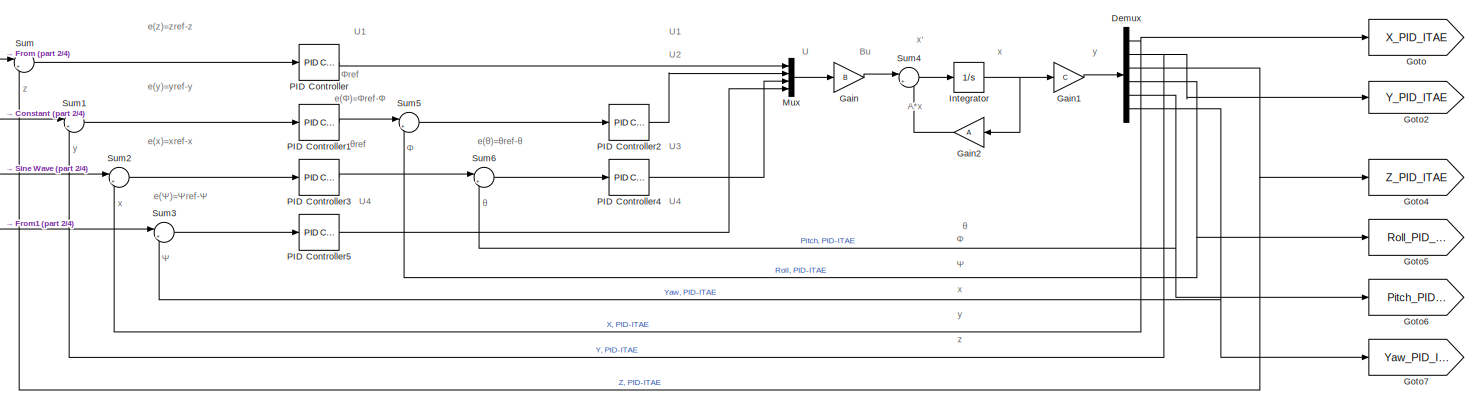
[diagram: root canvas - part 1/4, top center region]
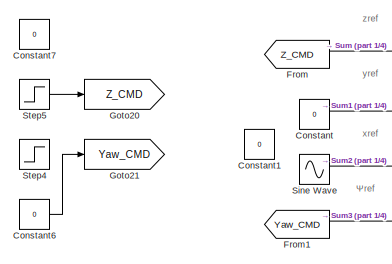
[diagram: root canvas - part 2/4, top left region]
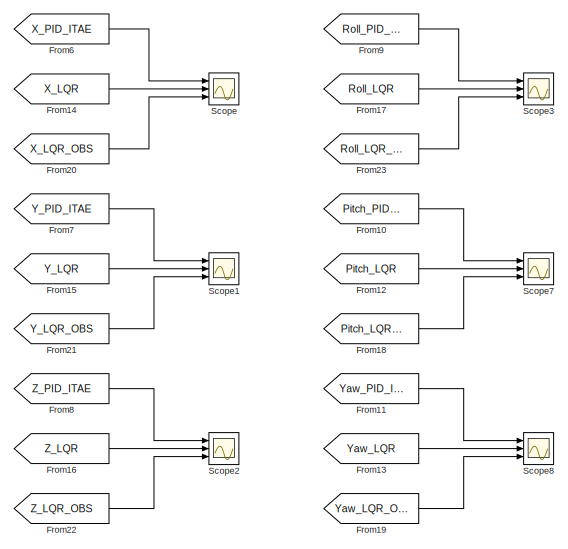
[diagram: root canvas - part 3/4, top right region]
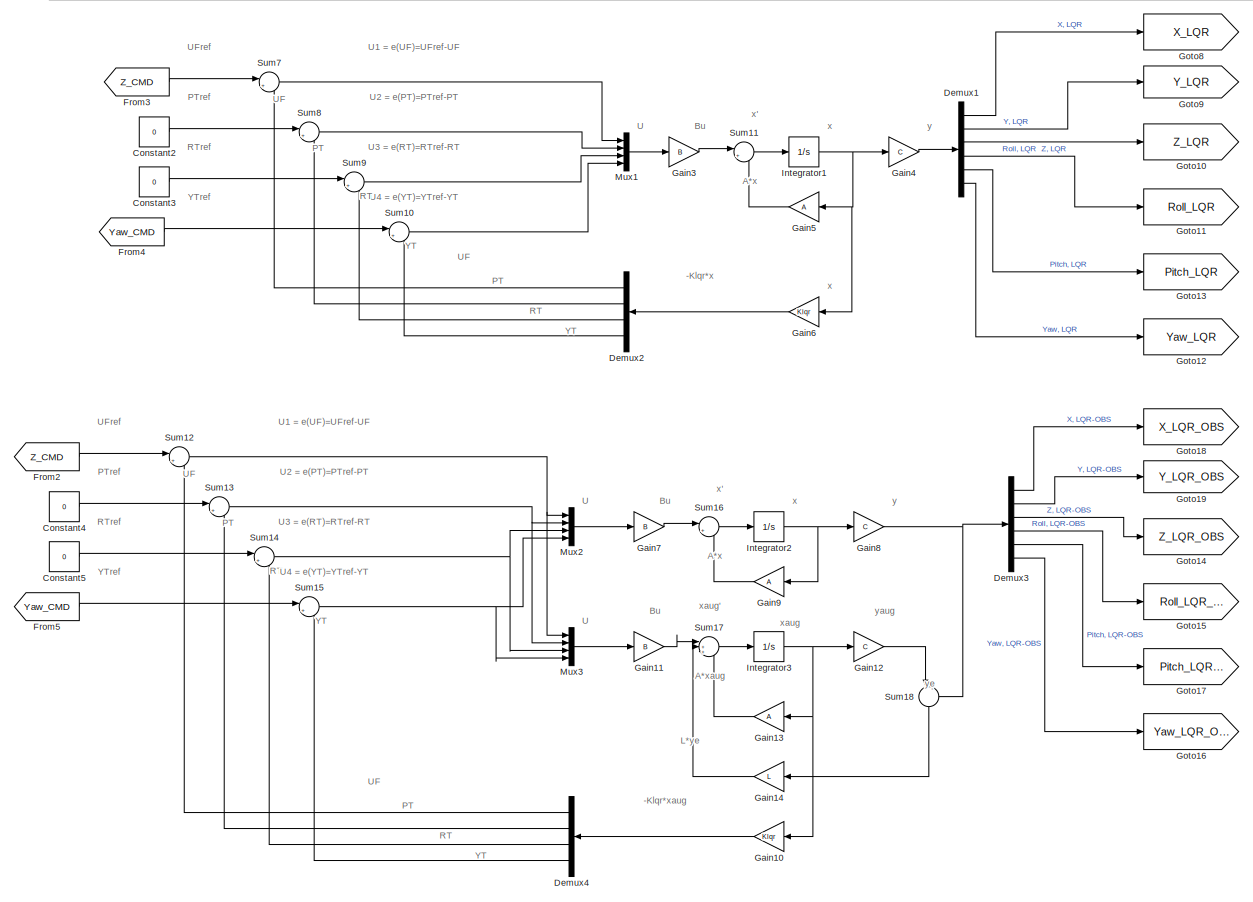
[diagram: root canvas - part 4/4, central region]
MODEL slx_621b7addf0d6
KIND model
CONFIG AbsTol = auto
CONFIG EnableMultiTasking = off
CONFIG FixedStep = auto
CONFIG MaxStep = auto
CONFIG MinStep = auto
CONFIG RelTol = 1e-3
CONFIG SampleTimeConstraint = Unconstrained
CONFIG SolverName = VariableStepAuto
CONFIG StartTime = 0.0
CONFIG StopTime = 12.5
BLOCK [Constant] Constant
  Value = 0
BLOCK [Constant] Constant1
  Value = 0
BLOCK [Constant] Constant2
  Value = 0
BLOCK [Constant] Constant3
  Value = 0
BLOCK [Constant] Constant4
  Value = 0
BLOCK [Constant] Constant5
  Value = 0
BLOCK [Constant] Constant6
  Value = 0
BLOCK [Constant] Constant7
  Value = 0
BLOCK [Demux] Demux
  Outputs = 6
  Ports = [1, 6]
BLOCK [Demux] Demux1
  Outputs = 6
  Ports = [1, 6]
BLOCK [Demux] Demux2
  Ports = [1, 4]
BLOCK [Demux] Demux3
  Outputs = 6
  Ports = [1, 6]
BLOCK [Demux] Demux4
  Ports = [1, 4]
BLOCK [From] From
  GotoTag = Z_CMD
BLOCK [From] From1
  GotoTag = Yaw_CMD
BLOCK [From] From10
  GotoTag = Pitch_PID_ITAE
BLOCK [From] From11
  GotoTag = Yaw_PID_ITAE
BLOCK [From] From12
  GotoTag = Pitch_LQR
BLOCK [From] From13
  GotoTag = Yaw_LQR
BLOCK [From] From14
  GotoTag = X_LQR
BLOCK [From] From15
  GotoTag = Y_LQR
BLOCK [From] From16
  GotoTag = Z_LQR
BLOCK [From] From17
  GotoTag = Roll_LQR
BLOCK [From] From18
  GotoTag = Pitch_LQR_OBS
BLOCK [From] From19
  GotoTag = Yaw_LQR_OBS
BLOCK [From] From2
  GotoTag = Z_CMD
BLOCK [From] From20
  GotoTag = X_LQR_OBS
BLOCK [From] From21
  GotoTag = Y_LQR_OBS
BLOCK [From] From22
  GotoTag = Z_LQR_OBS
BLOCK [From] From23
  GotoTag = Roll_LQR_OBS
BLOCK [From] From3
  GotoTag = Z_CMD
BLOCK [From] From4
  GotoTag = Yaw_CMD
BLOCK [From] From5
  GotoTag = Yaw_CMD
BLOCK [From] From6
  GotoTag = X_PID_ITAE
BLOCK [From] From7
  GotoTag = Y_PID_ITAE
BLOCK [From] From8
  GotoTag = Z_PID_ITAE
BLOCK [From] From9
  GotoTag = Roll_PID_ITAE
BLOCK [Gain] Gain
  AttributesFormatString = State-Space B*u
  Gain = B
  Multiplication = Matrix(K*u)
BLOCK [Gain] Gain1
  AttributesFormatString = State-Space C*x
  Gain = C
  Multiplication = Matrix(K*u)
BLOCK [Gain] Gain10
  AttributesFormatString = LQR Feedback Gain,\nAugmented States
  Gain = Klqr
  Multiplication = Matrix(K*u)
BLOCK [Gain] Gain11
  AttributesFormatString = State-Space B*u
  Gain = B
  Multiplication = Matrix(K*u)
BLOCK [Gain] Gain12
  AttributesFormatString = Augmented\nState-Space C*x
  Gain = C
  Multiplication = Matrix(K*u)
BLOCK [Gain] Gain13
  AttributesFormatString = Augmented\nState-Space A*x
  Gain = A
  Multiplication = Matrix(K*u)
BLOCK [Gain] Gain14
  AttributesFormatString = L*y_e
  Gain = L
  Multiplication = Matrix(K*u)
BLOCK [Gain] Gain2
  AttributesFormatString = State-Space A*x
  Gain = A
  Multiplication = Matrix(K*u)
BLOCK [Gain] Gain3
  AttributesFormatString = State-Space B*u
  Gain = B
  Multiplication = Matrix(K*u)
BLOCK [Gain] Gain4
  AttributesFormatString = State-Space C*x
  Gain = C
  Multiplication = Matrix(K*u)
BLOCK [Gain] Gain5
  AttributesFormatString = State-Space A*x
  Gain = A
  Multiplication = Matrix(K*u)
BLOCK [Gain] Gain6
  AttributesFormatString = LQR Feeback Gain
  Gain = Klqr
  Multiplication = Matrix(K*u)
BLOCK [Gain] Gain7
  AttributesFormatString = State-Space B*u
  Gain = B
  Multiplication = Matrix(K*u)
BLOCK [Gain] Gain8
  AttributesFormatString = State-Space C*x
  Gain = C
  Multiplication = Matrix(K*u)
BLOCK [Gain] Gain9
  AttributesFormatString = State-Space A*x
  Gain = A
  Multiplication = Matrix(K*u)
BLOCK [Goto] Goto
  GotoTag = X_PID_ITAE
BLOCK [Goto] Goto10
  GotoTag = Z_LQR
BLOCK [Goto] Goto11
  GotoTag = Roll_LQR
BLOCK [Goto] Goto12
  GotoTag = Yaw_LQR
BLOCK [Goto] Goto13
  GotoTag = Pitch_LQR
BLOCK [Goto] Goto14
  GotoTag = Z_LQR_OBS
BLOCK [Goto] Goto15
  GotoTag = Roll_LQR_OBS
BLOCK [Goto] Goto16
  GotoTag = Yaw_LQR_OBS
BLOCK [Goto] Goto17
  GotoTag = Pitch_LQR_OBS
BLOCK [Goto] Goto18
  GotoTag = X_LQR_OBS
BLOCK [Goto] Goto19
  GotoTag = Y_LQR_OBS
BLOCK [Goto] Goto2
  GotoTag = Y_PID_ITAE
BLOCK [Goto] Goto20
  GotoTag = Z_CMD
BLOCK [Goto] Goto21
  GotoTag = Yaw_CMD
BLOCK [Goto] Goto4
  GotoTag = Z_PID_ITAE
BLOCK [Goto] Goto5
  GotoTag = Roll_PID_ITAE
BLOCK [Goto] Goto6
  GotoTag = Pitch_PID_ITAE
BLOCK [Goto] Goto7
  GotoTag = Yaw_PID_ITAE
BLOCK [Goto] Goto8
  GotoTag = X_LQR
BLOCK [Goto] Goto9
  GotoTag = Y_LQR
BLOCK [Integrator] Integrator
  AttributesFormatString = Extract Current States
  Ports = [1, 1]
BLOCK [Integrator] Integrator1
  AttributesFormatString = Extract Current States
  Ports = [1, 1]
BLOCK [Integrator] Integrator2
  AttributesFormatString = Extract Current States
  Ports = [1, 1]
BLOCK [Integrator] Integrator3
  AttributesFormatString = Extract Current\nAugmented States
  Ports = [1, 1]
BLOCK [Mux] Mux
  DisplayOption = bar
  Ports = [4, 1]
BLOCK [Mux] Mux1
  DisplayOption = bar
  Ports = [4, 1]
BLOCK [Mux] Mux2
  DisplayOption = bar
  Ports = [4, 1]
BLOCK [Mux] Mux3
  DisplayOption = bar
  Ports = [4, 1]
BLOCK [Reference] PID Controller  REF=slpidlib/PID Controller
  AttributesFormatString = U1 Controller
  Ports = [1, 1]
  SourceBlock = slpidlib/PID Controller
  SourceProductBaseCode = SL
  SourceType = PID 1dof
BLOCK [Reference] PID Controller1  REF=slpidlib/PID Controller
  AttributesFormatString = Φref Generation
  Ports = [1, 1]
  SourceBlock = slpidlib/PID Controller
  SourceProductBaseCode = SL
  SourceType = PID 1dof
BLOCK [Reference] PID Controller2  REF=slpidlib/PID Controller
  AttributesFormatString = U2 Controller
  Ports = [1, 1]
  SourceBlock = slpidlib/PID Controller
  SourceProductBaseCode = SL
  SourceType = PID 1dof
BLOCK [Reference] PID Controller3  REF=slpidlib/PID Controller
  AttributesFormatString = θref Generation
  Ports = [1, 1]
  SourceBlock = slpidlib/PID Controller
  SourceProductBaseCode = SL
  SourceType = PID 1dof
BLOCK [Reference] PID Controller4  REF=slpidlib/PID Controller
  AttributesFormatString = U3 Controller
  Ports = [1, 1]
  SourceBlock = slpidlib/PID Controller
  SourceProductBaseCode = SL
  SourceType = PID 1dof
BLOCK [Reference] PID Controller5  REF=slpidlib/PID Controller
  AttributesFormatString = U4 Controller
  Ports = [1, 1]
  SourceBlock = slpidlib/PID Controller
  SourceProductBaseCode = SL
  SourceType = PID 1dof
BLOCK [Scope] Scope
  AttributesFormatString = Quadcopter X-Position\nOutputs
  Floating = off
  NumInputPorts = 3
  Ports = [3]
  ScopeSpecificationString = Simulink.scopes.TimeScopeBlockCfg('CurrentConfiguration', extmgr.ConfigurationSet(extmgr.Configuration('Core','General UI',true,'FigureColor',[1 1 1]),extmgr.Configuration('Core','Source UI',true),extmgr.Configuration('Sources','WiredSimulink',true,'DataLoggingVariableName','ScopeData1'),extmgr.Configuration('Visuals','Time Domain',true,'SerializedDisplays',{struct('MinYLimReal','-24.2479','MaxYLi...<+2211ch>
BLOCK [Scope] Scope1
  AttributesFormatString = Quadcopter Y-Position\nOutputs
  Floating = off
  NumInputPorts = 3
  Ports = [3]
  ScopeSpecificationString = Simulink.scopes.TimeScopeBlockCfg('CurrentConfiguration', extmgr.ConfigurationSet(extmgr.Configuration('Core','General UI',true,'FigureColor',[1 1 1]),extmgr.Configuration('Core','Source UI',true),extmgr.Configuration('Sources','WiredSimulink',true),extmgr.Configuration('Visuals','Time Domain',true,'SerializedDisplays',{struct('MinYLimReal','-0.0000000000000044','MaxYLimReal','0.0000000000000009',...<+2263ch>
BLOCK [Scope] Scope2
  AttributesFormatString = Quadcopter Z-Position\nOutputs
  Floating = off
  NumInputPorts = 3
  Ports = [3]
  ScopeSpecificationString = Simulink.scopes.TimeScopeBlockCfg('CurrentConfiguration', extmgr.ConfigurationSet(extmgr.Configuration('Core','General UI',true,'FigureColor',[1 1 1]),extmgr.Configuration('Core','Source UI',true),extmgr.Configuration('Sources','WiredSimulink',true,'DataLoggingVariableName','ScopeData2'),extmgr.Configuration('Visuals','Time Domain',true,'SerializedDisplays',{struct('MinYLimReal','-1.60046','MaxYLi...<+2213ch>
BLOCK [Scope] Scope3
  AttributesFormatString = Quadcopter Roll Angle\nOutputs
  Floating = off
  NumInputPorts = 3
  Ports = [3]
  ScopeSpecificationString = Simulink.scopes.TimeScopeBlockCfg('CurrentConfiguration', extmgr.ConfigurationSet(extmgr.Configuration('Core','General UI',true,'FigureColor',[1 1 1]),extmgr.Configuration('Core','Source UI',true),extmgr.Configuration('Sources','WiredSimulink',true,'DataLoggingVariableName','ScopeData3'),extmgr.Configuration('Visuals','Time Domain',true,'SerializedDisplays',{struct('MinYLimReal','-0.00000000000000...<+2319ch>
BLOCK [Scope] Scope7
  AttributesFormatString = Quadcopter Pitch Angle\nOutputs
  Floating = off
  NumInputPorts = 3
  Ports = [3]
  ScopeSpecificationString = Simulink.scopes.TimeScopeBlockCfg('CurrentConfiguration', extmgr.ConfigurationSet(extmgr.Configuration('Core','General UI',true,'FigureColor',[1 1 1]),extmgr.Configuration('Core','Source UI',true),extmgr.Configuration('Sources','WiredSimulink',true,'DataLoggingVariableName','ScopeData7'),extmgr.Configuration('Visuals','Time Domain',true,'SerializedDisplays',{struct('MinYLimReal','-0.00000000000000...<+2322ch>
BLOCK [Scope] Scope8
  AttributesFormatString = Quadcopter Yaw Angle\nOutputs
  Floating = off
  NumInputPorts = 3
  Ports = [3]
  ScopeSpecificationString = Simulink.scopes.TimeScopeBlockCfg('CurrentConfiguration', extmgr.ConfigurationSet(extmgr.Configuration('Core','General UI',true,'FigureColor',[1 1 1]),extmgr.Configuration('Core','Source UI',true),extmgr.Configuration('Sources','WiredSimulink',true,'DataLoggingVariableName','ScopeData8'),extmgr.Configuration('Visuals','Time Domain',true,'SerializedDisplays',{struct('MinYLimReal','-1.07548','MaxYLi...<+2220ch>
BLOCK [Sin] Sine Wave
  Amplitude = 20
  Frequency = 0.3142
  Ports = [0, 1]
  SampleTime = 0
BLOCK [Step] Step4
  After = 5
  SampleTime = 0
  Time = 0
BLOCK [Step] Step5
  After = 8
  SampleTime = 0
BLOCK [Sum] Sum
  Inputs = |+-
  Ports = [2, 1]
BLOCK [Sum] Sum1
  Inputs = |+-
  Ports = [2, 1]
BLOCK [Sum] Sum10
  Inputs = |+-
  Ports = [2, 1]
BLOCK [Sum] Sum11
  Inputs = |++
  Ports = [2, 1]
BLOCK [Sum] Sum12
  Inputs = |+-
  Ports = [2, 1]
BLOCK [Sum] Sum13
  Inputs = |+-
  Ports = [2, 1]
BLOCK [Sum] Sum14
  Inputs = |+-
  Ports = [2, 1]
BLOCK [Sum] Sum15
  Inputs = |+-
  Ports = [2, 1]
BLOCK [Sum] Sum16
  Inputs = |++
  Ports = [2, 1]
BLOCK [Sum] Sum17
  Inputs = |+++
  Ports = [3, 1]
BLOCK [Sum] Sum18
  Inputs = |-+
  NameLocation = left
  Ports = [2, 1]
BLOCK [Sum] Sum2
  Inputs = |++
  Ports = [2, 1]
BLOCK [Sum] Sum3
  Inputs = |+-
  Ports = [2, 1]
BLOCK [Sum] Sum4
  Inputs = |++
  Ports = [2, 1]
BLOCK [Sum] Sum5
  Inputs = |+-
  Ports = [2, 1]
BLOCK [Sum] Sum6
  Inputs = |+-
  Ports = [2, 1]
BLOCK [Sum] Sum7
  Inputs = |+-
  Ports = [2, 1]
BLOCK [Sum] Sum8
  Inputs = |+-
  Ports = [2, 1]
BLOCK [Sum] Sum9
  Inputs = |+-
  Ports = [2, 1]
ANNOTATION (root): Ψ
ANNOTATION (root): Ψ ref
ANNOTATION (root): U 4
ANNOTATION (root): x
ANNOTATION (root): y
ANNOTATION (root): z
ANNOTATION (root): Φ
ANNOTATION (root): Φ ref
ANNOTATION (root): θ
ANNOTATION (root): θ ref
ANNOTATION (root): - K lqr *x
ANNOTATION (root): - K lqr *x aug
ANNOTATION (root): A*x
ANNOTATION (root): A*x aug
ANNOTATION (root): Bu
ANNOTATION (root): L*y e
ANNOTATION (root): PT
ANNOTATION (root): PT ref
ANNOTATION (root): RT
ANNOTATION (root): RT ref
ANNOTATION (root): U
ANNOTATION (root): U 3 = e(RT)=RT ref -RT
ANNOTATION (root): U 1
ANNOTATION (root): U 1 = e(UF)=UF ref -UF
ANNOTATION (root): U 2
ANNOTATION (root): U 2 = e(PT)=PT ref -PT
ANNOTATION (root): U 3
ANNOTATION (root): U 4 = e(YT)=YT ref -YT
ANNOTATION (root): UF
ANNOTATION (root): UF ref
ANNOTATION (root): YT
ANNOTATION (root): YT ref
ANNOTATION (root): e( Ψ )= Ψ ref - Ψ
ANNOTATION (root): e( Φ )= Φ ref - Φ
ANNOTATION (root): e( θ )= θ ref - θ
ANNOTATION (root): e(x)=x ref -x
ANNOTATION (root): e(y)=y ref -y
ANNOTATION (root): e(z)=z ref -z
ANNOTATION (root): x'
ANNOTATION (root): x aug
ANNOTATION (root): x aug '
ANNOTATION (root): x ref
ANNOTATION (root): y aug
ANNOTATION (root): y e
ANNOTATION (root): y ref
ANNOTATION (root): z ref
LINE Constant2:1 -> Sum8:1
LINE Constant3:1 -> Sum9:1
LINE Constant4:1 -> Sum13:1
LINE Constant5:1 -> Sum14:1
LINE Constant6:1 -> Goto21:1
LINE Constant:1 -> Sum1:1
LINE Demux1:1 -> Goto8:1
LINE Demux1:2 -> Goto9:1
LINE Demux1:3 -> Goto10:1
LINE Demux1:4 -> Goto11:1
LINE Demux1:5 -> Goto13:1
LINE Demux1:6 -> Goto12:1
LINE Demux2:1 -> Sum7:2
LINE Demux2:2 -> Sum8:2
LINE Demux2:3 -> Sum9:2
LINE Demux2:4 -> Sum10:2
LINE Demux3:1 -> Goto18:1
LINE Demux3:2 -> Goto19:1
LINE Demux3:3 -> Goto14:1
LINE Demux3:4 -> Goto15:1
LINE Demux3:5 -> Goto17:1
LINE Demux3:6 -> Goto16:1
LINE Demux4:1 -> Sum12:2
LINE Demux4:2 -> Sum13:2
LINE Demux4:3 -> Sum14:2
LINE Demux4:4 -> Sum15:2
NET Demux:1 -> Goto:1, Sum2:2
NET Demux:2 -> Goto2:1, Sum1:2
NET Demux:3 -> Goto4:1, Sum:2
NET Demux:4 -> Goto5:1, Sum5:2
NET Demux:5 -> Goto6:1, Sum6:2
NET Demux:6 -> Goto7:1, Sum3:2
LINE From10:1 -> Scope7:1
LINE From11:1 -> Scope8:1
LINE From12:1 -> Scope7:2
LINE From13:1 -> Scope8:2
LINE From14:1 -> Scope:2
LINE From15:1 -> Scope1:2
LINE From16:1 -> Scope2:2
LINE From17:1 -> Scope3:2
LINE From18:1 -> Scope7:3
LINE From19:1 -> Scope8:3
LINE From1:1 -> Sum3:1
LINE From20:1 -> Scope:3
LINE From21:1 -> Scope1:3
LINE From22:1 -> Scope2:3
LINE From23:1 -> Scope3:3
LINE From2:1 -> Sum12:1
LINE From3:1 -> Sum7:1
LINE From4:1 -> Sum10:1
LINE From5:1 -> Sum15:1
LINE From6:1 -> Scope:1
LINE From7:1 -> Scope1:1
LINE From8:1 -> Scope2:1
LINE From9:1 -> Scope3:1
LINE From:1 -> Sum:1
LINE Gain10:1 -> Demux4:1
LINE Gain11:1 -> Sum17:1
LINE Gain12:1 -> Sum18:1
LINE Gain13:1 -> Sum17:3
LINE Gain14:1 -> Sum17:2
LINE Gain1:1 -> Demux:1
LINE Gain2:1 -> Sum4:2
LINE Gain3:1 -> Sum11:1
LINE Gain4:1 -> Demux1:1
LINE Gain5:1 -> Sum11:2
LINE Gain6:1 -> Demux2:1
LINE Gain7:1 -> Sum16:1
NET Gain8:1 -> Demux3:1, Sum18:2
LINE Gain9:1 -> Sum16:2
LINE Gain:1 -> Sum4:1
NET Integrator1:1 -> Gain4:1, Gain5:1, Gain6:1
NET Integrator2:1 -> Gain8:1, Gain9:1
NET Integrator3:1 -> Gain10:1, Gain12:1, Gain13:1
NET Integrator:1 -> Gain1:1, Gain2:1
LINE Mux1:1 -> Gain3:1
LINE Mux2:1 -> Gain7:1
LINE Mux3:1 -> Gain11:1
LINE Mux:1 -> Gain:1
LINE PID Controller1:1 -> Sum5:1
LINE PID Controller2:1 -> Mux:2
LINE PID Controller3:1 -> Sum6:1
LINE PID Controller4:1 -> Mux:3
LINE PID Controller5:1 -> Mux:4
LINE PID Controller:1 -> Mux:1
LINE Sine Wave:1 -> Sum2:1
LINE Step5:1 -> Goto20:1
LINE Sum10:1 -> Mux1:4
LINE Sum11:1 -> Integrator1:1
NET Sum12:1 -> Mux2:1, Mux3:1
NET Sum13:1 -> Mux2:2, Mux3:2
NET Sum14:1 -> Mux2:3, Mux3:3
NET Sum15:1 -> Mux2:4, Mux3:4
LINE Sum16:1 -> Integrator2:1
LINE Sum17:1 -> Integrator3:1
LINE Sum18:1 -> Gain14:1
LINE Sum1:1 -> PID Controller1:1
LINE Sum2:1 -> PID Controller3:1
LINE Sum3:1 -> PID Controller5:1
LINE Sum4:1 -> Integrator:1
LINE Sum5:1 -> PID Controller2:1
LINE Sum6:1 -> PID Controller4:1
LINE Sum7:1 -> Mux1:1
LINE Sum8:1 -> Mux1:2
LINE Sum9:1 -> Mux1:3
LINE Sum:1 -> PID Controller:1
note: NET lines group one-source signal fan-out (src -> all destinations, sorted); 1:1 wires keep LINE
